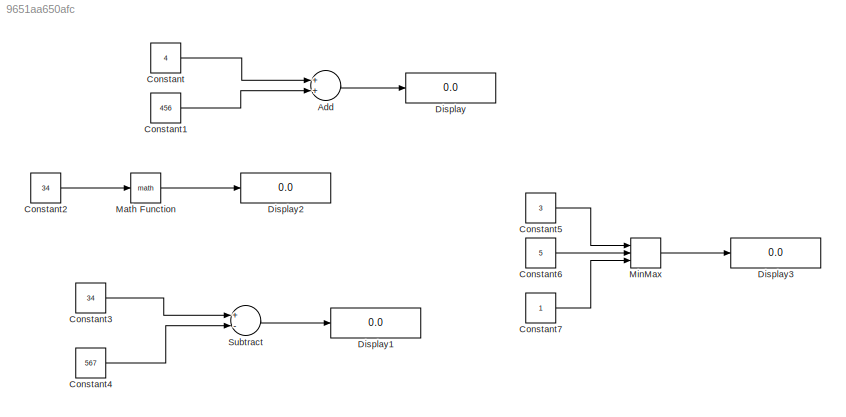
MODEL slx_9651aa650afc
KIND model
CONFIG AbsTol = auto
CONFIG EnableMultiTasking = off
CONFIG FixedStep = auto
CONFIG MaxStep = auto
CONFIG MinStep = auto
CONFIG RelTol = 1e-3
CONFIG SampleTimeConstraint = Unconstrained
CONFIG Solver = VariableStepAuto
CONFIG SolverName = VariableStepAuto
CONFIG StartTime = 0.0
CONFIG StopTime = 10.0
BLOCK [Sum] Add
  InputSameDT = off
  OutDataTypeStr = Inherit: Inherit via internal rule
  Ports = [2, 1]
  SaturateOnIntegerOverflow = off
BLOCK [Constant] Constant
  Value = 4
BLOCK [Constant] Constant1
  Value = 456
BLOCK [Constant] Constant2
  Value = 34
BLOCK [Constant] Constant3
  Value = 34
BLOCK [Constant] Constant4
  Value = 567
BLOCK [Constant] Constant5
  Value = 3
BLOCK [Constant] Constant6
  Value = 5
BLOCK [Constant] Constant7
BLOCK [Display] Display
  Decimation = 1
  Ports = [1]
BLOCK [Display] Display1
  Decimation = 1
  Ports = [1]
BLOCK [Display] Display2
  Decimation = 1
  Ports = [1]
BLOCK [Display] Display3
  Decimation = 1
  Ports = [1]
BLOCK [Math] Math Function
  Ports = [1, 1]
BLOCK [MinMax] MinMax
  InputSameDT = off
  Inputs = 3
  Ports = [3, 1]
  SaturateOnIntegerOverflow = off
BLOCK [Sum] Subtract
  InputSameDT = off
  Inputs = +-
  OutDataTypeStr = Inherit: Inherit via internal rule
  Ports = [2, 1]
  SaturateOnIntegerOverflow = off
LINE Add:1 -> Display:1
LINE Constant1:1 -> Add:2
LINE Constant2:1 -> Math Function:1
LINE Constant3:1 -> Subtract:1
LINE Constant4:1 -> Subtract:2
LINE Constant5:1 -> MinMax:1
LINE Constant6:1 -> MinMax:2
LINE Constant7:1 -> MinMax:3
LINE Constant:1 -> Add:1
LINE Math Function:1 -> Display2:1
LINE MinMax:1 -> Display3:1
LINE Subtract:1 -> Display1:1
